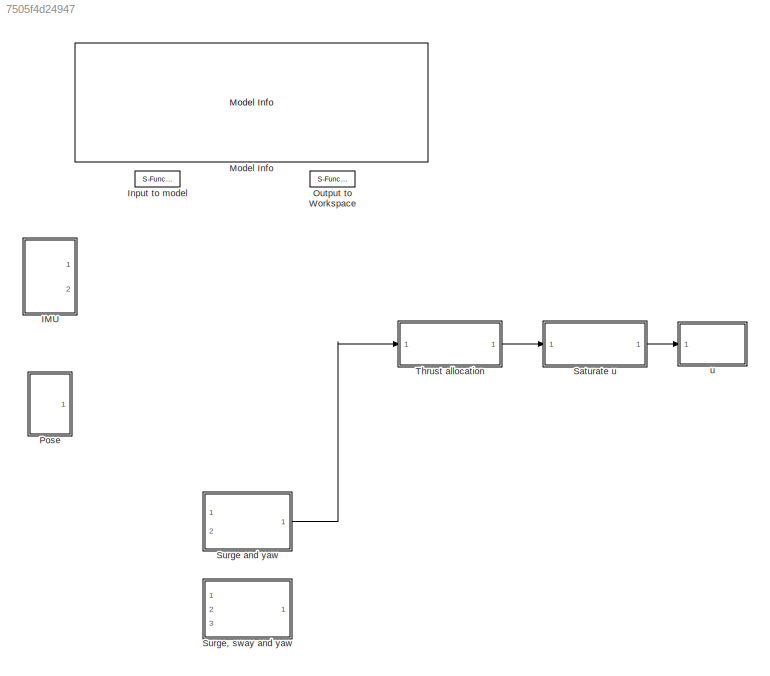
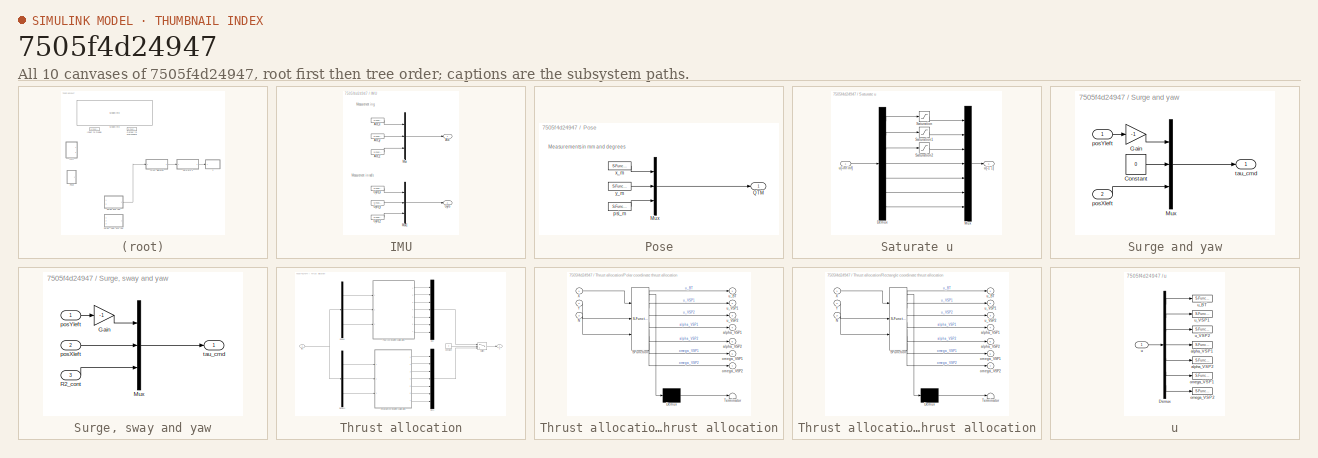
[diagram: thumbnail index - all 10 canvases of the model, root first then tree order]
MODEL slx_7505f4d24947
KIND model
CONFIG AbsTol = auto
CONFIG EnableMultiTasking = on
CONFIG FixedStep = 0.01
CONFIG MaxStep = auto
CONFIG MinStep = auto
CONFIG RelTol = 1e-3
CONFIG SampleTimeConstraint = Unconstrained
CONFIG Solver = ode4
CONFIG SolverName = ode4
CONFIG StartTime = 0.0
CONFIG StopTime = inf
BLOCK [SubSystem] IMU
  Ports = [0, 2]
  RequestExecContextInheritance = off
  Variant = off
BLOCK [Outport] IMU/Acc
  IconDisplay = Port number
BLOCK [S-Function] IMU/Acc_x
  CopyFcn = NIVeriStand_MDL_functions('', 'IO_copy');
  DeleteFcn = NIVeriStand_MDL_functions('', 'IO_delete');
  EnableBusSupport = off
  FunctionName = NIVeriStandIO
  MoveFcn = set_param(gcb, 'Mask', 'on');
  Parameters = width dtype portnum stime stype btype
  Ports = [0, 1]
  Priority = 1
  SFcnIsStateOwnerBlock = off
  SFunctionDeploymentMode = off
BLOCK [S-Function] IMU/Acc_y
  CopyFcn = NIVeriStand_MDL_functions('', 'IO_copy');
  DeleteFcn = NIVeriStand_MDL_functions('', 'IO_delete');
  EnableBusSupport = off
  FunctionName = NIVeriStandIO
  MoveFcn = set_param(gcb, 'Mask', 'on');
  Parameters = width dtype portnum stime stype btype
  Ports = [0, 1]
  Priority = 2
  SFcnIsStateOwnerBlock = off
  SFunctionDeploymentMode = off
BLOCK [S-Function] IMU/Acc_z
  CopyFcn = NIVeriStand_MDL_functions('', 'IO_copy');
  DeleteFcn = NIVeriStand_MDL_functions('', 'IO_delete');
  EnableBusSupport = off
  FunctionName = NIVeriStandIO
  MoveFcn = set_param(gcb, 'Mask', 'on');
  Parameters = width dtype portnum stime stype btype
  Ports = [0, 1]
  Priority = 3
  SFcnIsStateOwnerBlock = off
  SFunctionDeploymentMode = off
BLOCK [Outport] IMU/Gyro
  IconDisplay = Port number
  Port = 2
BLOCK [S-Function] IMU/Gyro_x
  CopyFcn = NIVeriStand_MDL_functions('', 'IO_copy');
  DeleteFcn = NIVeriStand_MDL_functions('', 'IO_delete');
  EnableBusSupport = off
  FunctionName = NIVeriStandIO
  MoveFcn = set_param(gcb, 'Mask', 'on');
  Parameters = width dtype portnum stime stype btype
  Ports = [0, 1]
  Priority = 4
  SFcnIsStateOwnerBlock = off
  SFunctionDeploymentMode = off
BLOCK [S-Function] IMU/Gyro_y
  CopyFcn = NIVeriStand_MDL_functions('', 'IO_copy');
  DeleteFcn = NIVeriStand_MDL_functions('', 'IO_delete');
  EnableBusSupport = off
  FunctionName = NIVeriStandIO
  MoveFcn = set_param(gcb, 'Mask', 'on');
  Parameters = width dtype portnum stime stype btype
  Ports = [0, 1]
  Priority = 5
  SFcnIsStateOwnerBlock = off
  SFunctionDeploymentMode = off
BLOCK [S-Function] IMU/Gyro_z
  CopyFcn = NIVeriStand_MDL_functions('', 'IO_copy');
  DeleteFcn = NIVeriStand_MDL_functions('', 'IO_delete');
  EnableBusSupport = off
  FunctionName = NIVeriStandIO
  MoveFcn = set_param(gcb, 'Mask', 'on');
  Parameters = width dtype portnum stime stype btype
  Ports = [0, 1]
  Priority = 6
  SFcnIsStateOwnerBlock = off
  SFunctionDeploymentMode = off
BLOCK [Mux] IMU/Mux
  DisplayOption = bar
  Inputs = 3
  Ports = [3, 1]
BLOCK [Mux] IMU/Mux1
  DisplayOption = bar
  Inputs = 3
  Ports = [3, 1]
BLOCK [S-Function] Input to model
  CopyFcn = NIVeriStand_MDL_functions('', 'IO_copy');
  DeleteFcn = NIVeriStand_MDL_functions('', 'IO_delete');
  EnableBusSupport = off
  FunctionName = NIVeriStandIO
  MoveFcn = set_param(gcb, 'Mask', 'on');
  Parameters = width dtype portnum stime stype btype
  Ports = [0, 1]
  Priority = 1
  SFcnIsStateOwnerBlock = off
  SFunctionDeploymentMode = off
BLOCK [Reference] Model Info  REF=simulink/Model-Wide
Utilities/Model Info
  Ports = []
  SourceBlock = simulink/Model-Wide\nUtilities/Model Info
  SourceType = CMBlock
BLOCK [S-Function] Output to Workspace
  CopyFcn = NIVeriStand_MDL_functions('', 'IO_copy');
  DeleteFcn = NIVeriStand_MDL_functions('', 'IO_delete');
  EnableBusSupport = off
  FunctionName = NIVeriStandIO
  MoveFcn = set_param(gcb, 'Mask', 'on');
  Parameters = width dtype portnum stime stype btype
  Ports = [1]
  Priority = 1
  SFcnIsStateOwnerBlock = off
  SFunctionDeploymentMode = off
BLOCK [SubSystem] Pose
  Ports = [0, 1]
  RequestExecContextInheritance = off
  Variant = off
BLOCK [Mux] Pose/Mux
  DisplayOption = bar
  Inputs = 3
  Ports = [3, 1]
BLOCK [Outport] Pose/QTM
  IconDisplay = Port number
BLOCK [S-Function] Pose/psi_m
  CopyFcn = NIVeriStand_MDL_functions('', 'IO_copy');
  DeleteFcn = NIVeriStand_MDL_functions('', 'IO_delete');
  EnableBusSupport = off
  FunctionName = NIVeriStandIO
  MoveFcn = set_param(gcb, 'Mask', 'on');
  Parameters = width dtype portnum stime stype btype
  Ports = [0, 1]
  Priority = 3
  SFcnIsStateOwnerBlock = off
  SFunctionDeploymentMode = off
BLOCK [S-Function] Pose/x_m
  CopyFcn = NIVeriStand_MDL_functions('', 'IO_copy');
  DeleteFcn = NIVeriStand_MDL_functions('', 'IO_delete');
  EnableBusSupport = off
  FunctionName = NIVeriStandIO
  MoveFcn = set_param(gcb, 'Mask', 'on');
  Parameters = width dtype portnum stime stype btype
  Ports = [0, 1]
  Priority = 1
  SFcnIsStateOwnerBlock = off
  SFunctionDeploymentMode = off
BLOCK [S-Function] Pose/y_m
  CopyFcn = NIVeriStand_MDL_functions('', 'IO_copy');
  DeleteFcn = NIVeriStand_MDL_functions('', 'IO_delete');
  EnableBusSupport = off
  FunctionName = NIVeriStandIO
  MoveFcn = set_param(gcb, 'Mask', 'on');
  Parameters = width dtype portnum stime stype btype
  Ports = [0, 1]
  Priority = 2
  SFcnIsStateOwnerBlock = off
  SFunctionDeploymentMode = off
BLOCK [SubSystem] Saturate u
  Ports = [1, 1]
  RequestExecContextInheritance = off
  Variant = off
BLOCK [Demux] Saturate u/Demux
  DisplayOption = bar
  Outputs = 7
  Ports = [1, 7]
BLOCK [Mux] Saturate u/Mux
  DisplayOption = bar
  Inputs = 7
  Ports = [7, 1]
BLOCK [Saturate] Saturate u/Saturation
  InputPortMap = u0
  LowerLimit = -1
  Ports = [1, 1]
  UpperLimit = 1
BLOCK [Saturate] Saturate u/Saturation1
  InputPortMap = u0
  LowerLimit = -1
  Ports = [1, 1]
  UpperLimit = 1
BLOCK [Saturate] Saturate u/Saturation2
  InputPortMap = u0
  LowerLimit = -1
  Ports = [1, 1]
  UpperLimit = 1
BLOCK [Outport] Saturate u/u[-1 1]
  IconDisplay = Port number
BLOCK [Inport] Saturate u/u[-inf inf]
  IconDisplay = Port number
BLOCK [SubSystem] Surge and yaw
  Ports = [2, 1]
  RequestExecContextInheritance = off
  Variant = off
BLOCK [Constant] Surge and yaw/Constant
  Value = 0
BLOCK [Gain] Surge and yaw/Gain
  Gain = -1
  OutDataTypeStr = Inherit: Inherit via internal rule
  ParamDataTypeStr = Inherit: Inherit via internal rule
  SaturateOnIntegerOverflow = off
BLOCK [Mux] Surge and yaw/Mux
  DisplayOption = bar
  Inputs = 3
  Ports = [3, 1]
BLOCK [Inport] Surge and yaw/posXleft
  IconDisplay = Port number
  Port = 2
BLOCK [Inport] Surge and yaw/posYleft
  IconDisplay = Port number
BLOCK [Outport] Surge and yaw/tau_cmd 
  IconDisplay = Port number
BLOCK [SubSystem] Surge, sway and yaw
  Ports = [3, 1]
  RequestExecContextInheritance = off
  Variant = off
BLOCK [Gain] Surge, sway and yaw/Gain
  Gain = -1
  OutDataTypeStr = Inherit: Inherit via internal rule
  ParamDataTypeStr = Inherit: Inherit via internal rule
  SaturateOnIntegerOverflow = off
BLOCK [Mux] Surge, sway and yaw/Mux
  DisplayOption = bar
  Inputs = 3
  Ports = [3, 1]
BLOCK [Inport] Surge, sway and yaw/R2_cont
  IconDisplay = Port number
  Port = 3
BLOCK [Inport] Surge, sway and yaw/posXleft
  IconDisplay = Port number
  Port = 2
BLOCK [Inport] Surge, sway and yaw/posYleft
  IconDisplay = Port number
BLOCK [Outport] Surge, sway and yaw/tau_cmd 
  IconDisplay = Port number
BLOCK [SubSystem] Thrust allocation
  Ports = [1, 1]
  RequestExecContextInheritance = off
  Variant = off
BLOCK [Constant] Thrust allocation/Constant
  Value = 0
BLOCK [Demux] Thrust allocation/Demux
  DisplayOption = bar
  Outputs = 3
  Ports = [1, 3]
BLOCK [Demux] Thrust allocation/Demux1
  DisplayOption = bar
  Outputs = 3
  Ports = [1, 3]
BLOCK [Mux] Thrust allocation/Mux
  DisplayOption = bar
  Inputs = 7
  Ports = [7, 1]
BLOCK [Mux] Thrust allocation/Mux1
  DisplayOption = bar
  Inputs = 7
  Ports = [7, 1]
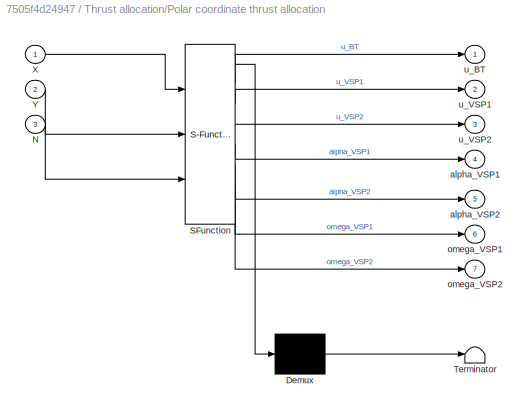
BLOCK [SubSystem] Thrust allocation/Polar coordinate thrust allocation
  ErrorFcn = Stateflow.Translate.translate
  PermitHierarchicalResolution = ExplicitOnly
  Ports = [3, 7]
  RequestExecContextInheritance = off
  SFBlockType = MATLAB Function
  TreatAsAtomicUnit = on
  Variant = off
BLOCK [Demux] Thrust allocation/Polar coordinate thrust allocation/ Demux 
  Outputs = 1
  Ports = [1, 1]
BLOCK [S-Function] Thrust allocation/Polar coordinate thrust allocation/ SFunction 
  EnableBusSupport = off
  FunctionName = sf_sfun
  PortCounts = [3 8]
  Ports = [3, 8]
  SFcnIsStateOwnerBlock = off
  SFunctionDeploymentMode = off
  Tag = Stateflow S-Function ctrl_custom_TA2 2
BLOCK [Terminator] Thrust allocation/Polar coordinate thrust allocation/ Terminator 
BLOCK [Inport] Thrust allocation/Polar coordinate thrust allocation/N
  IconDisplay = Port number
  Port = 3
BLOCK [Inport] Thrust allocation/Polar coordinate thrust allocation/X
  IconDisplay = Port number
BLOCK [Inport] Thrust allocation/Polar coordinate thrust allocation/Y
  IconDisplay = Port number
  Port = 2
BLOCK [Outport] Thrust allocation/Polar coordinate thrust allocation/alpha_VSP1
  IconDisplay = Port number
  Port = 4
BLOCK [Outport] Thrust allocation/Polar coordinate thrust allocation/alpha_VSP2
  IconDisplay = Port number
  Port = 5
BLOCK [Outport] Thrust allocation/Polar coordinate thrust allocation/omega_VSP1
  IconDisplay = Port number
  Port = 6
BLOCK [Outport] Thrust allocation/Polar coordinate thrust allocation/omega_VSP2
  IconDisplay = Port number
  Port = 7
BLOCK [Outport] Thrust allocation/Polar coordinate thrust allocation/u_BT
  IconDisplay = Port number
BLOCK [Outport] Thrust allocation/Polar coordinate thrust allocation/u_VSP1
  IconDisplay = Port number
  Port = 2
BLOCK [Outport] Thrust allocation/Polar coordinate thrust allocation/u_VSP2
  IconDisplay = Port number
  Port = 3
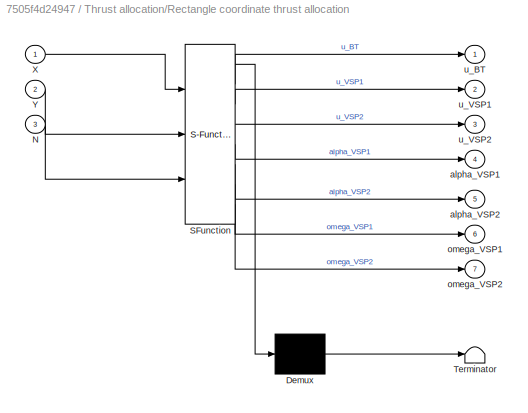
BLOCK [SubSystem] Thrust allocation/Rectangle coordinate thrust allocation
  ErrorFcn = Stateflow.Translate.translate
  PermitHierarchicalResolution = ExplicitOnly
  Ports = [3, 7]
  RequestExecContextInheritance = off
  SFBlockType = MATLAB Function
  TreatAsAtomicUnit = on
  Variant = off
BLOCK [Demux] Thrust allocation/Rectangle coordinate thrust allocation/ Demux 
  Outputs = 1
  Ports = [1, 1]
BLOCK [S-Function] Thrust allocation/Rectangle coordinate thrust allocation/ SFunction 
  EnableBusSupport = off
  FunctionName = sf_sfun
  PortCounts = [3 8]
  Ports = [3, 8]
  SFcnIsStateOwnerBlock = off
  SFunctionDeploymentMode = off
  Tag = Stateflow S-Function ctrl_custom_TA2 1
BLOCK [Terminator] Thrust allocation/Rectangle coordinate thrust allocation/ Terminator 
BLOCK [Inport] Thrust allocation/Rectangle coordinate thrust allocation/N
  IconDisplay = Port number
  Port = 3
BLOCK [Inport] Thrust allocation/Rectangle coordinate thrust allocation/X
  IconDisplay = Port number
BLOCK [Inport] Thrust allocation/Rectangle coordinate thrust allocation/Y
  IconDisplay = Port number
  Port = 2
BLOCK [Outport] Thrust allocation/Rectangle coordinate thrust allocation/alpha_VSP1
  IconDisplay = Port number
  Port = 4
BLOCK [Outport] Thrust allocation/Rectangle coordinate thrust allocation/alpha_VSP2
  IconDisplay = Port number
  Port = 5
BLOCK [Outport] Thrust allocation/Rectangle coordinate thrust allocation/omega_VSP1
  IconDisplay = Port number
  Port = 6
BLOCK [Outport] Thrust allocation/Rectangle coordinate thrust allocation/omega_VSP2
  IconDisplay = Port number
  Port = 7
BLOCK [Outport] Thrust allocation/Rectangle coordinate thrust allocation/u_BT
  IconDisplay = Port number
BLOCK [Outport] Thrust allocation/Rectangle coordinate thrust allocation/u_VSP1
  IconDisplay = Port number
  Port = 2
BLOCK [Outport] Thrust allocation/Rectangle coordinate thrust allocation/u_VSP2
  IconDisplay = Port number
  Port = 3
BLOCK [Switch] Thrust allocation/Switch
  Criteria = u2 > Threshold
  InputSameDT = off
  SaturateOnIntegerOverflow = off
BLOCK [Inport] Thrust allocation/tau
  IconDisplay = Port number
BLOCK [Outport] Thrust allocation/u
  IconDisplay = Port number
BLOCK [SubSystem] u
  Ports = [1]
  RequestExecContextInheritance = off
  Variant = off
BLOCK [Demux] u/Demux
  DisplayOption = bar
  Outputs = 7
  Ports = [1, 7]
BLOCK [S-Function] u/alpha_VSP1
  CopyFcn = NIVeriStand_MDL_functions('', 'IO_copy');
  DeleteFcn = NIVeriStand_MDL_functions('', 'IO_delete');
  EnableBusSupport = off
  FunctionName = NIVeriStandIO
  MoveFcn = set_param(gcb, 'Mask', 'on');
  Parameters = width dtype portnum stime stype btype
  Ports = [1]
  Priority = 4
  SFcnIsStateOwnerBlock = off
  SFunctionDeploymentMode = off
BLOCK [S-Function] u/alpha_VSP2
  CopyFcn = NIVeriStand_MDL_functions('', 'IO_copy');
  DeleteFcn = NIVeriStand_MDL_functions('', 'IO_delete');
  EnableBusSupport = off
  FunctionName = NIVeriStandIO
  MoveFcn = set_param(gcb, 'Mask', 'on');
  Parameters = width dtype portnum stime stype btype
  Ports = [1]
  Priority = 1
  SFcnIsStateOwnerBlock = off
  SFunctionDeploymentMode = off
BLOCK [S-Function] u/omega_VSP1
  CopyFcn = NIVeriStand_MDL_functions('', 'IO_copy');
  DeleteFcn = NIVeriStand_MDL_functions('', 'IO_delete');
  EnableBusSupport = off
  FunctionName = NIVeriStandIO
  MoveFcn = set_param(gcb, 'Mask', 'on');
  Parameters = width dtype portnum stime stype btype
  Ports = [1]
  Priority = 2
  SFcnIsStateOwnerBlock = off
  SFunctionDeploymentMode = off
BLOCK [S-Function] u/omega_VSP2
  CopyFcn = NIVeriStand_MDL_functions('', 'IO_copy');
  DeleteFcn = NIVeriStand_MDL_functions('', 'IO_delete');
  EnableBusSupport = off
  FunctionName = NIVeriStandIO
  MoveFcn = set_param(gcb, 'Mask', 'on');
  Parameters = width dtype portnum stime stype btype
  Ports = [1]
  Priority = 3
  SFcnIsStateOwnerBlock = off
  SFunctionDeploymentMode = off
BLOCK [Inport] u/u
  IconDisplay = Port number
BLOCK [S-Function] u/u_BT
  CopyFcn = NIVeriStand_MDL_functions('', 'IO_copy');
  DeleteFcn = NIVeriStand_MDL_functions('', 'IO_delete');
  EnableBusSupport = off
  FunctionName = NIVeriStandIO
  MoveFcn = set_param(gcb, 'Mask', 'on');
  Parameters = width dtype portnum stime stype btype
  Ports = [1]
  Priority = 5
  SFcnIsStateOwnerBlock = off
  SFunctionDeploymentMode = off
BLOCK [S-Function] u/u_VSP1
  CopyFcn = NIVeriStand_MDL_functions('', 'IO_copy');
  DeleteFcn = NIVeriStand_MDL_functions('', 'IO_delete');
  EnableBusSupport = off
  FunctionName = NIVeriStandIO
  MoveFcn = set_param(gcb, 'Mask', 'on');
  Parameters = width dtype portnum stime stype btype
  Ports = [1]
  Priority = 6
  SFcnIsStateOwnerBlock = off
  SFunctionDeploymentMode = off
BLOCK [S-Function] u/u_VSP2
  CopyFcn = NIVeriStand_MDL_functions('', 'IO_copy');
  DeleteFcn = NIVeriStand_MDL_functions('', 'IO_delete');
  EnableBusSupport = off
  FunctionName = NIVeriStandIO
  MoveFcn = set_param(gcb, 'Mask', 'on');
  Parameters = width dtype portnum stime stype btype
  Ports = [1]
  Priority = 7
  SFcnIsStateOwnerBlock = off
  SFunctionDeploymentMode = off
ANNOTATION IMU: Measurement in g
ANNOTATION IMU: Measurement in rad/s
ANNOTATION Pose: Measurements in mm and degrees
LINE IMU/Acc_x:1 -> IMU/Mux:1
LINE IMU/Acc_y:1 -> IMU/Mux:2
LINE IMU/Acc_z:1 -> IMU/Mux:3
LINE IMU/Gyro_x:1 -> IMU/Mux1:1
LINE IMU/Gyro_y:1 -> IMU/Mux1:2
LINE IMU/Gyro_z:1 -> IMU/Mux1:3
LINE IMU/Mux1:1 -> IMU/Gyro:1
LINE IMU/Mux:1 -> IMU/Acc:1
LINE Pose/Mux:1 -> Pose/QTM:1
LINE Pose/psi_m:1 -> Pose/Mux:3
LINE Pose/x_m:1 -> Pose/Mux:1
LINE Pose/y_m:1 -> Pose/Mux:2
LINE Saturate u/Demux:1 -> Saturate u/Saturation:1
LINE Saturate u/Demux:2 -> Saturate u/Saturation1:1
LINE Saturate u/Demux:3 -> Saturate u/Saturation2:1
LINE Saturate u/Demux:4 -> Saturate u/Mux:4
LINE Saturate u/Demux:5 -> Saturate u/Mux:5
LINE Saturate u/Demux:6 -> Saturate u/Mux:6
LINE Saturate u/Demux:7 -> Saturate u/Mux:7
LINE Saturate u/Mux:1 -> Saturate u/u[-1 1]:1
LINE Saturate u/Saturation1:1 -> Saturate u/Mux:2
LINE Saturate u/Saturation2:1 -> Saturate u/Mux:3
LINE Saturate u/Saturation:1 -> Saturate u/Mux:1
LINE Saturate u/u[-inf inf]:1 -> Saturate u/Demux:1
LINE Saturate u:1 -> u:1
LINE Surge and yaw/Constant:1 -> Surge and yaw/Mux:2
LINE Surge and yaw/Gain:1 -> Surge and yaw/Mux:1
LINE Surge and yaw/Mux:1 -> Surge and yaw/tau_cmd :1
LINE Surge and yaw/posXleft:1 -> Surge and yaw/Mux:3
LINE Surge and yaw/posYleft:1 -> Surge and yaw/Gain:1
LINE Surge and yaw:1 -> Thrust allocation:1
LINE Surge, sway and yaw/Gain:1 -> Surge, sway and yaw/Mux:1
LINE Surge, sway and yaw/Mux:1 -> Surge, sway and yaw/tau_cmd :1
LINE Surge, sway and yaw/R2_cont:1 -> Surge, sway and yaw/Mux:3
LINE Surge, sway and yaw/posXleft:1 -> Surge, sway and yaw/Mux:2
LINE Surge, sway and yaw/posYleft:1 -> Surge, sway and yaw/Gain:1
LINE Thrust allocation/Constant:1 -> Thrust allocation/Switch:2
LINE Thrust allocation/Demux1:1 -> Thrust allocation/Rectangle coordinate thrust allocation:1
LINE Thrust allocation/Demux1:2 -> Thrust allocation/Rectangle coordinate thrust allocation:2
LINE Thrust allocation/Demux1:3 -> Thrust allocation/Rectangle coordinate thrust allocation:3
LINE Thrust allocation/Demux:1 -> Thrust allocation/Polar coordinate thrust allocation:1
LINE Thrust allocation/Demux:2 -> Thrust allocation/Polar coordinate thrust allocation:2
LINE Thrust allocation/Demux:3 -> Thrust allocation/Polar coordinate thrust allocation:3
LINE Thrust allocation/Mux1:1 -> Thrust allocation/Switch:3
LINE Thrust allocation/Mux:1 -> Thrust allocation/Switch:1
LINE Thrust allocation/Polar coordinate thrust allocation:1 -> Thrust allocation/Mux:1
LINE Thrust allocation/Polar coordinate thrust allocation:2 -> Thrust allocation/Mux:2
LINE Thrust allocation/Polar coordinate thrust allocation:3 -> Thrust allocation/Mux:3
LINE Thrust allocation/Polar coordinate thrust allocation:4 -> Thrust allocation/Mux:4
LINE Thrust allocation/Polar coordinate thrust allocation:5 -> Thrust allocation/Mux:5
LINE Thrust allocation/Polar coordinate thrust allocation:6 -> Thrust allocation/Mux:6
LINE Thrust allocation/Polar coordinate thrust allocation:7 -> Thrust allocation/Mux:7
LINE Thrust allocation/Rectangle coordinate thrust allocation:1 -> Thrust allocation/Mux1:1
LINE Thrust allocation/Rectangle coordinate thrust allocation:2 -> Thrust allocation/Mux1:2
LINE Thrust allocation/Rectangle coordinate thrust allocation:3 -> Thrust allocation/Mux1:3
LINE Thrust allocation/Rectangle coordinate thrust allocation:4 -> Thrust allocation/Mux1:4
LINE Thrust allocation/Rectangle coordinate thrust allocation:5 -> Thrust allocation/Mux1:5
LINE Thrust allocation/Rectangle coordinate thrust allocation:6 -> Thrust allocation/Mux1:6
LINE Thrust allocation/Rectangle coordinate thrust allocation:7 -> Thrust allocation/Mux1:7
LINE Thrust allocation/Switch:1 -> Thrust allocation/u:1
NET Thrust allocation/tau:1 -> Thrust allocation/Demux1:1, Thrust allocation/Demux:1
LINE Thrust allocation:1 -> Saturate u:1
LINE u/Demux:1 -> u/u_BT:1
LINE u/Demux:2 -> u/u_VSP1:1
LINE u/Demux:3 -> u/u_VSP2:1
LINE u/Demux:4 -> u/alpha_VSP1:1
LINE u/Demux:5 -> u/alpha_VSP2:1
LINE u/Demux:6 -> u/omega_VSP1:1
LINE u/Demux:7 -> u/omega_VSP2:1
LINE u/u:1 -> u/Demux:1
note: NET lines group one-source signal fan-out (src -> all destinations, sorted); 1:1 wires keep LINE
CHART Thrust allocation/Rectangle coordinate thrust allocation states=1 transitions=1
  STATE_LABEL 'eML_blk_kernel()'
  STATE_LABEL "SCRIPT:\nfunction [u_BT, u_VSP1, u_VSP2, alpha_VSP1, alpha_VSP2, omega_VSP1, omega_VSP2] = RectangleTA(X, Y, N)\n\n    tau = [X, Y, N]';\n\n    % lengths\n    lvspx = -0.4574;\n    lbx = 0.3875;\n    lvsp1y = -0.055;\n    lvsp2y = 0.055;\n    \n    % thrust configuration matrix\n    B = [0, 1, 0, 1, 0;\n         1, 0, 1, 0, 1;\n         lbx, -lvsp1y, lvspx, -lvsp2y, lvspx];\n     \n    % force coefficient matrix\n...<+371ch>"
CHART Thrust allocation/Polar coordinate thrust allocation states=1 transitions=1
  STATE_LABEL 'eML_blk_kernel()'
  STATE_LABEL "SCRIPT:\nfunction [u_BT, u_VSP1, u_VSP2, alpha_VSP1, alpha_VSP2, omega_VSP1, omega_VSP2] = PolarTA(X, Y, N)\n    \n    tau = [X, Y, N]';\n\n    % set angles\n    if X > 0\n        alpha_VSP1 = 0;\n        alpha_VSP2 = 0;\n    else \n        alpha_VSP1 = pi;\n        alpha_VSP2 = pi;\n    end\n\n    % lengths\n    lvspx = -0.4574;\n    lbx = 0.3875;\n    lvsp1y = -0.055;\n    lvsp2y = 0.055;\n    \n    % thrust config...<+499ch>"
